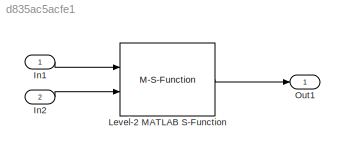
MODEL slx_d835ac5acfe1
KIND model
CONFIG AbsTol = auto
CONFIG EnableMultiTasking = off
CONFIG FixedStep = auto
CONFIG MaxStep = auto
CONFIG MinStep = auto
CONFIG RelTol = 1e-3
CONFIG SampleTimeConstraint = Unconstrained
CONFIG SolverName = FixedStepDiscrete
CONFIG StartTime = 0.0
CONFIG StopTime = 10.0
BLOCK [Inport] In1
  PortDimensions = [2 2]
BLOCK [Inport] In2
  Port = 2
  PortDimensions = [2 2]
BLOCK [M-S-Function] Level-2 MATLAB S-Function
  FunctionName = pow_func
  Ports = [2, 1]
BLOCK [Outport] Out1
LINE In1:1 -> Level-2 MATLAB S-Function:1
LINE In2:1 -> Level-2 MATLAB S-Function:2
LINE Level-2 MATLAB S-Function:1 -> Out1:1
